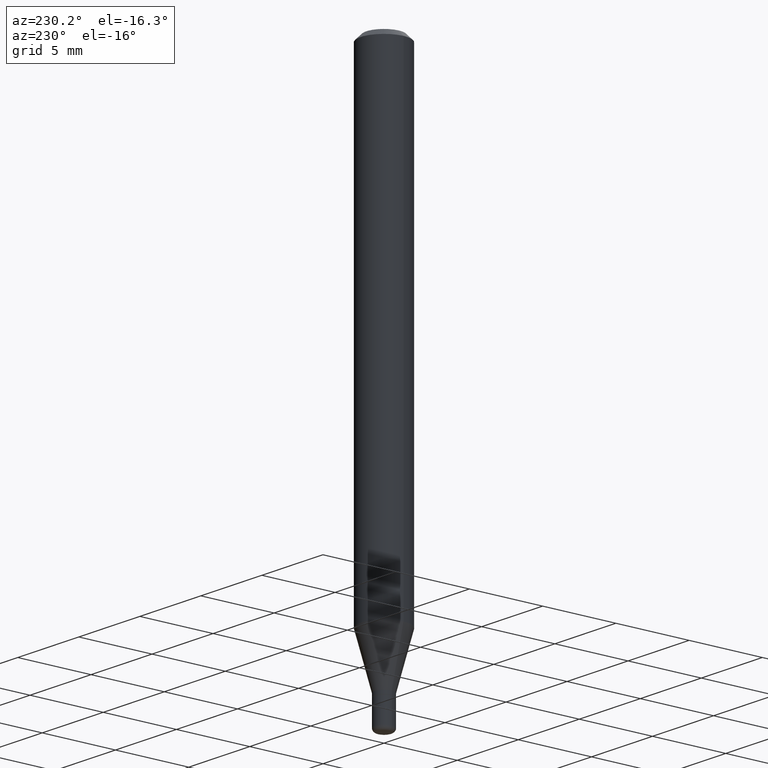
[diagram: clean part render]
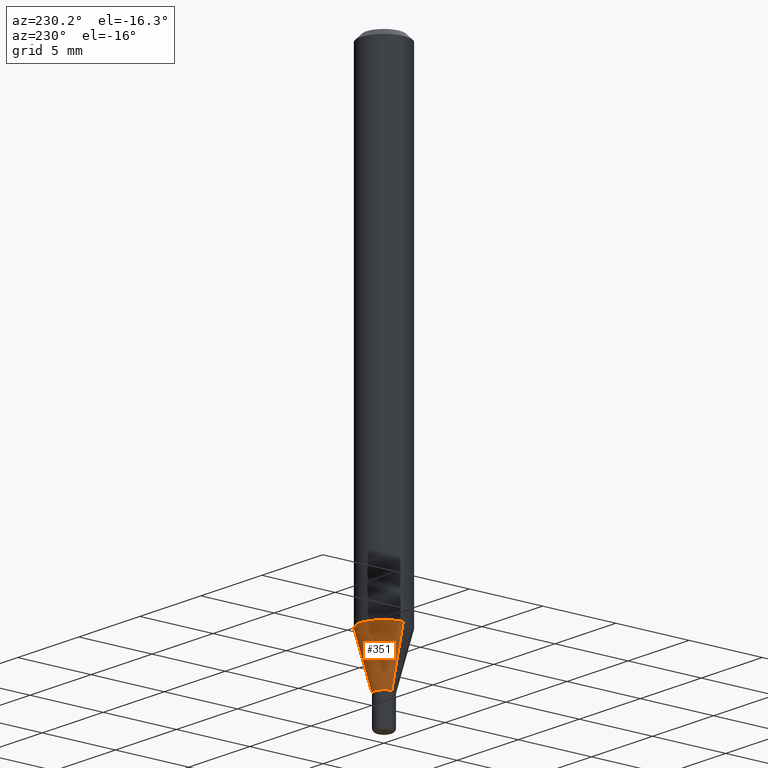
[diagram: same view with one face highlighted and labeled with its STEP entity id]
A machine part, auxiliary view. The second image highlights one B-rep face of the part: STEP entity #351.
In plain terms, the highlighted conical surface has half-angle 15 deg.
Its self-contained STEP definition (entity closure, byte-faithful):
#11 = ORIENTED_EDGE ( 'NONE', *, *, #110, .F. ) ;
#17 = VERTEX_POINT ( 'NONE', #331 ) ;
#21 = DIRECTION ( 'NONE',  ( -2.445468806185136597E-29, 3.491481338843145583E-15, 1.000000000000000000 ) ) ;
#23 = VECTOR ( 'NONE', #478, 39.37007874015748143 ) ;
#24 = DIRECTION ( 'NONE',  ( 1.000000000000000000, -6.982962677686262766E-15, 0.000000000000000000 ) ) ;
#28 = CARTESIAN_POINT ( 'NONE',  ( -0.06250000000000000000, -4.007717418978941084E-15, -1.275048094716166869 ) ) ;
#87 = ORIENTED_EDGE ( 'NONE', *, *, #279, .T. ) ;
#100 = DIRECTION ( 'NONE',  ( 0.2588190451025205174, 1.565188264969628476E-15, 0.9659258262890684232 ) ) ;
#110 = EDGE_CURVE ( 'NONE', #513, #17, #260, .T. ) ;
#119 = CARTESIAN_POINT ( 'NONE',  ( 3.460338360751968441E-29, -4.940446094463050737E-15, -1.415000000000000036 ) ) ;
#126 = DIRECTION ( 'NONE',  ( -2.445468806185136597E-29, 3.491481338843145583E-15, 1.000000000000000000 ) ) ;
#140 = DIRECTION ( 'NONE',  ( 1.000000000000000000, -6.982962677686260400E-15, 0.000000000000000000 ) ) ;
#181 = ORIENTED_EDGE ( 'NONE', *, *, #228, .T. ) ;
#201 = DIRECTION ( 'NONE',  ( 1.000000000000000000, -6.982962677686260400E-15, 0.000000000000000000 ) ) ;
#202 = AXIS2_PLACEMENT_3D ( 'NONE', #340, #503, #140 ) ;
#228 = EDGE_CURVE ( 'NONE', #513, #248, #446, .T. ) ;
#240 = AXIS2_PLACEMENT_3D ( 'NONE', #119, #126, #201 ) ;
#248 = VERTEX_POINT ( 'NONE', #342 ) ;
#250 = VERTEX_POINT ( 'NONE', #28 ) ;
#255 = CARTESIAN_POINT ( 'NONE',  ( 3.118090342014177952E-29, -4.451806628829005278E-15, -1.275048094716166869 ) ) ;
#260 = LINE ( 'NONE', #298, #454 ) ;
#262 = CIRCLE ( 'NONE', #482, 0.06250000000000000000 ) ;
#279 = EDGE_CURVE ( 'NONE', #248, #250, #359, .T. ) ;
#290 = CARTESIAN_POINT ( 'NONE',  ( 0.02499999999999998057, -5.115020161405207405E-15, -1.415000000000000036 ) ) ;
#298 = CARTESIAN_POINT ( 'NONE',  ( 0.02499999999999998057, -5.115020161405207405E-15, -1.415000000000000036 ) ) ;
#319 = CARTESIAN_POINT ( 'NONE',  ( -0.02499999999999998057, -4.762810410523025533E-15, -1.415000000000000036 ) ) ;
#331 = CARTESIAN_POINT ( 'NONE',  ( 0.06250000000000000000, -4.888241796184395369E-15, -1.275048094716166869 ) ) ;
#340 = CARTESIAN_POINT ( 'NONE',  ( 3.460338360751968441E-29, -4.940446094463050737E-15, -1.415000000000000036 ) ) ;
#342 = CARTESIAN_POINT ( 'NONE',  ( -0.02499999999999998057, -4.385263914750983308E-15, -1.415000000000000036 ) ) ;
#351 = ADVANCED_FACE ( 'NONE', ( #437 ), #412, .T. ) ;
#359 = LINE ( 'NONE', #319, #23 ) ;
#395 = EDGE_LOOP ( 'NONE', ( #181, #87, #470, #11 ) ) ;
#412 = CONICAL_SURFACE ( 'NONE', #240, 0.02499999999999998057, 0.2617993877991491858 ) ;
#437 = FACE_OUTER_BOUND ( 'NONE', #395, .T. ) ;
#446 = CIRCLE ( 'NONE', #202, 0.02499999999999998057 ) ;
#454 = VECTOR ( 'NONE', #100, 39.37007874015748143 ) ;
#470 = ORIENTED_EDGE ( 'NONE', *, *, #475, .F. ) ;
#475 = EDGE_CURVE ( 'NONE', #17, #250, #262, .T. ) ;
#478 = DIRECTION ( 'NONE',  ( -0.2588190451025205174, 5.211531920934544731E-15, 0.9659258262890684232 ) ) ;
#482 = AXIS2_PLACEMENT_3D ( 'NONE', #255, #21, #24 ) ;
#503 = DIRECTION ( 'NONE',  ( -2.445468806185136597E-29, 3.491481338843145583E-15, 1.000000000000000000 ) ) ;
#513 = VERTEX_POINT ( 'NONE', #290 ) ;